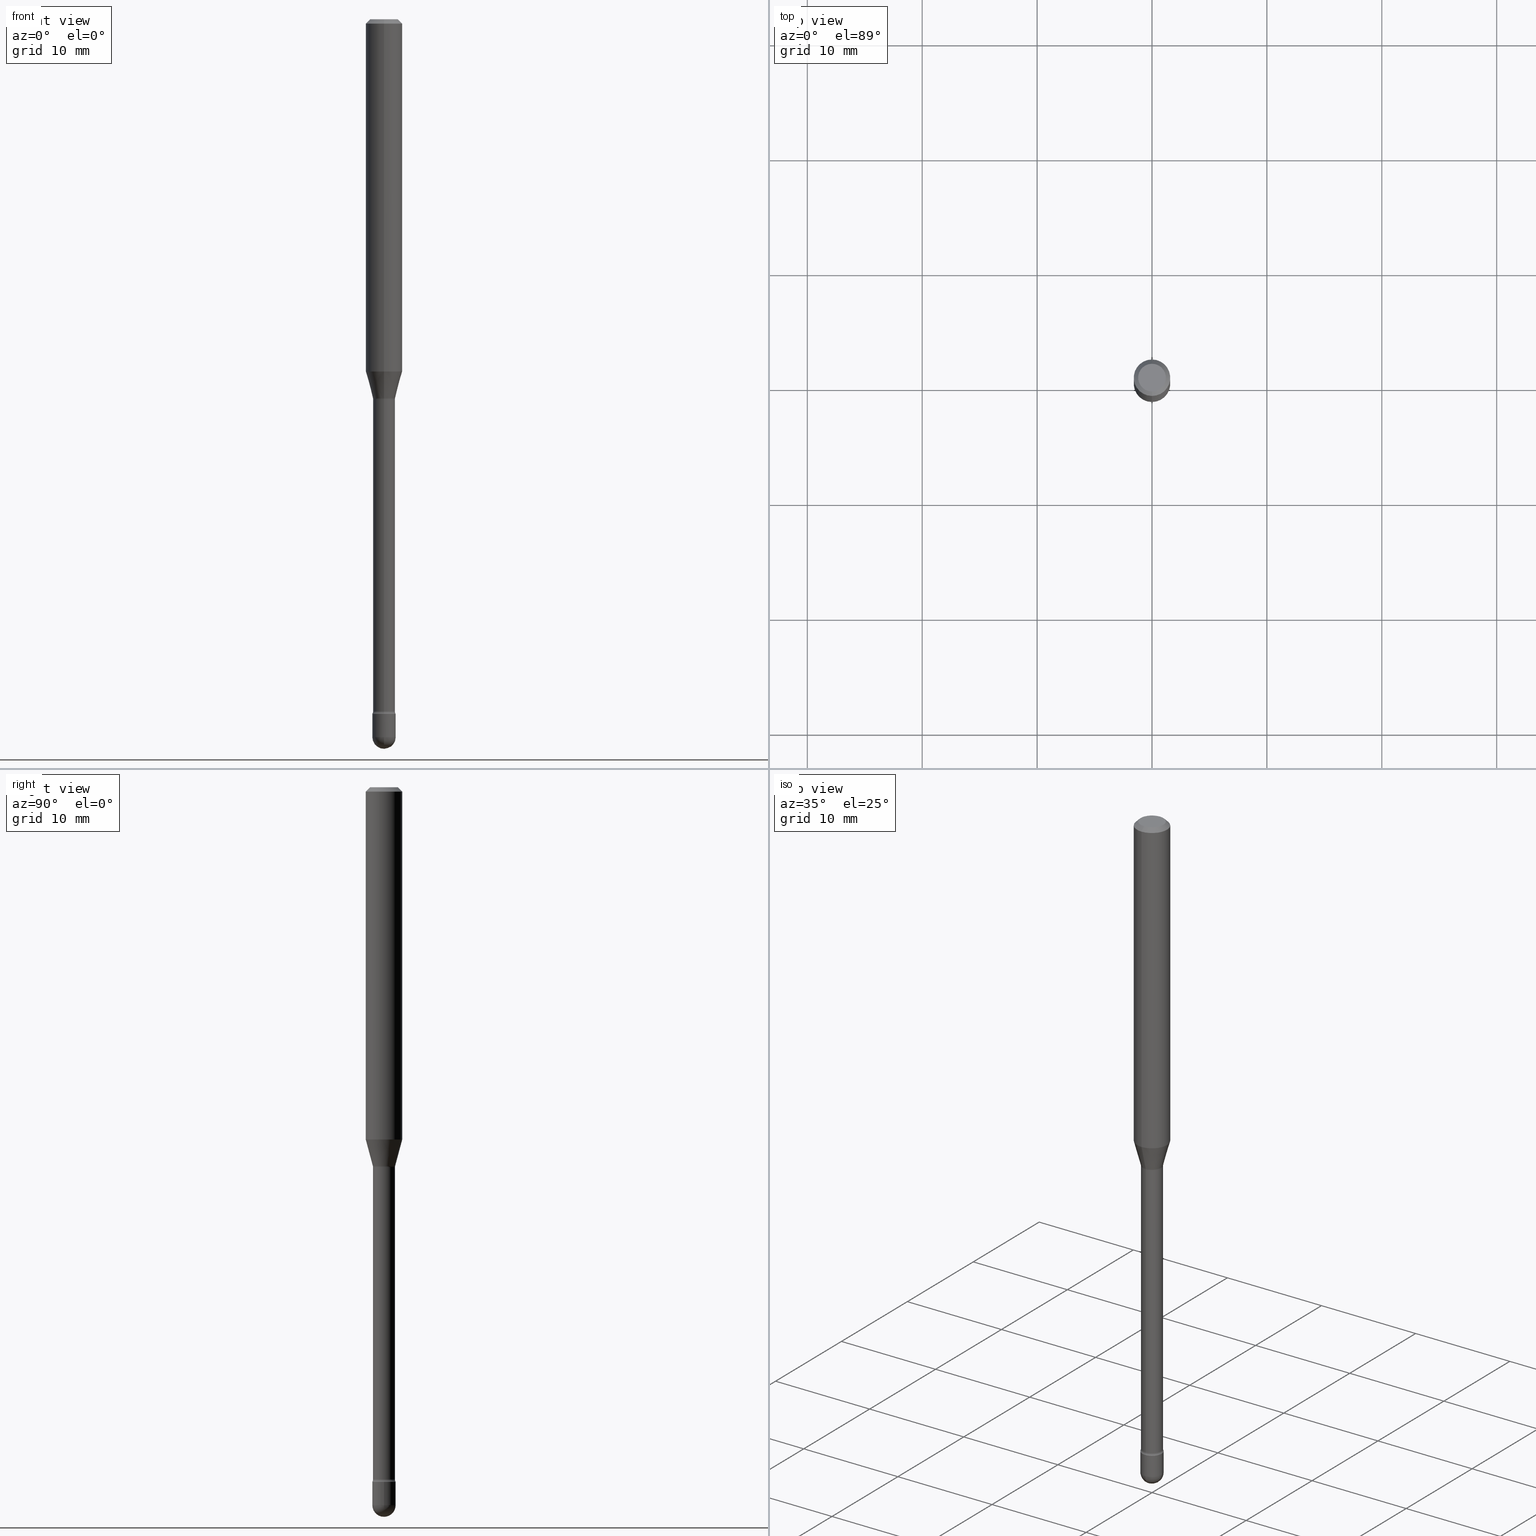
[diagram: canonical four-view strip — front | top / right | iso, engineering-drawing reading convention]
A machine part, canonical four-view strip (front | top / right | iso — engineering-drawing reading convention). The complete STEP part file that produces these views, byte-faithful:
ISO-10303-21;
HEADER;
FILE_DESCRIPTION (( 'STEP AP203' ),
    '1' );
FILE_NAME ('03931.STEP',
    '2024-04-09T21:15:11',
    ( '' ),
    ( '' ),
    'SwSTEP 2.0',
    'SolidWorks 2023',
    '' );
FILE_SCHEMA (( 'CONFIG_CONTROL_DESIGN' ));
ENDSEC;

DATA;
#1 = ORIENTED_EDGE ( 'NONE', *, *, #59, .F. ) ;
#2 = DIRECTION ( 'NONE',  ( -2.445468806185136597E-29, 3.491481338843145583E-15, 1.000000000000000000 ) ) ;
#3 = DIRECTION ( 'NONE',  ( 1.000000000000000000, -6.982962677686265922E-15, 4.883557194083112340E-29 ) ) ;
#4 = AXIS2_PLACEMENT_3D ( 'NONE', #244, #146, #478 ) ;
#5 = LOCAL_TIME ( 17, 15, 11.00000000000000000, #409 ) ;
#6 = ORIENTED_EDGE ( 'NONE', *, *, #462, .F. ) ;
#7 = CALENDAR_DATE ( 2024, 9, 4 ) ;
#8 = DIRECTION ( 'NONE',  ( -2.445468806185136597E-29, 3.491481338843145583E-15, 1.000000000000000000 ) ) ;
#9 = DIRECTION ( 'NONE',  ( -6.982962677686265922E-15, -1.000000000000000000, 3.491492591625370773E-15 ) ) ;
#10 = CARTESIAN_POINT ( 'NONE',  ( 4.364351673553919652E-16, 0.06249999999999995143, -0.01500000000000030129 ) ) ;
#11 = EDGE_CURVE ( 'NONE', #144, #384, #338, .T. ) ;
#12 = CARTESIAN_POINT ( 'NONE',  ( 5.800312587032241644E-29, -8.281309132162736146E-15, -2.371861204020250025 ) ) ;
#13 = DIRECTION ( 'NONE',  ( -2.445460948409306574E-29, 3.491492591625370773E-15, 1.000000000000000000 ) ) ;
#14 = CC_DESIGN_PERSON_AND_ORGANIZATION_ASSIGNMENT ( #521, #324, ( #313 ) ) ;
#15 = CYLINDRICAL_SURFACE ( 'NONE', #116, 0.04000000000000000083 ) ;
#16 = AXIS2_PLACEMENT_3D ( 'NONE', #443, #396, #328 ) ;
#17 = EDGE_LOOP ( 'NONE', ( #458, #225, #73, #520 ) ) ;
#18 = ADVANCED_FACE ( 'NONE', ( #366 ), #46, .F. ) ;
#19 = ORIENTED_EDGE ( 'NONE', *, *, #121, .T. ) ;
#20 = EDGE_CURVE ( 'NONE', #345, #505, #548, .T. ) ;
#21 = DATE_AND_TIME ( #213, #440 ) ;
#22 = DIRECTION ( 'NONE',  ( -6.982962677686265922E-15, -1.000000000000000000, 0.000000000000000000 ) ) ;
#23 = ORIENTED_EDGE ( 'NONE', *, *, #447, .F. ) ;
#24 = CARTESIAN_POINT ( 'NONE',  ( -3.773273898774340269E-16, -0.04749999999999999362, 8.309940053781544412E-17 ) ) ;
#25 = DATE_AND_TIME ( #74, #381 ) ;
#26 = CIRCLE ( 'NONE', #106, 0.04000000000000000083 ) ;
#27 = AXIS2_PLACEMENT_3D ( 'NONE', #257, #166, #342 ) ;
#28 = ADVANCED_FACE ( 'NONE', ( #248 ), #294, .T. ) ;
#29 = EDGE_CURVE ( 'NONE', #503, #227, #438, .T. ) ;
#30 = DIRECTION ( 'NONE',  ( -1.000000000000000000, 6.982962677686265922E-15, -4.883557194083112340E-29 ) ) ;
#31 = CC_DESIGN_DATE_AND_TIME_ASSIGNMENT ( #21, #337, ( #421 ) ) ;
#32 = EDGE_CURVE ( 'NONE', #382, #416, #339, .T. ) ;
#33 = CYLINDRICAL_SURFACE ( 'NONE', #196, 0.03760000000000005699 ) ;
#34 = AXIS2_PLACEMENT_3D ( 'NONE', #75, #427, #415 ) ;
#35 = DIRECTION ( 'NONE',  ( -6.982962677686265922E-15, -1.000000000000000000, 3.491492591625370773E-15 ) ) ;
#36 = ORIENTED_EDGE ( 'NONE', *, *, #447, .T. ) ;
#37 = ADVANCED_FACE ( 'NONE', ( #111 ), #155, .F. ) ;
#38 = EDGE_LOOP ( 'NONE', ( #563, #230, #551, #160 ) ) ;
#39 = DIRECTION ( 'NONE',  ( -2.445468806185136877E-29, 3.491481338843145188E-15, 1.000000000000000000 ) ) ;
#40 = FACE_OUTER_BOUND ( 'NONE', #38, .T. ) ;
#41 = EDGE_CURVE ( 'NONE', #441, #431, #262, .T. ) ;
#42 = DIRECTION ( 'NONE',  ( -2.445460948409306574E-29, 3.491492591625370773E-15, 1.000000000000000000 ) ) ;
#43 = ORIENTED_EDGE ( 'NONE', *, *, #351, .T. ) ;
#44 = VERTEX_POINT ( 'NONE', #180 ) ;
#45 = CARTESIAN_POINT ( 'NONE',  ( -2.625593966809718021E-16, -0.03760000000000455339, -1.301974787463811456 ) ) ;
#46 = TOROIDAL_SURFACE ( 'NONE', #369, 0.05260000000000013276, 0.01500000000000001853 ) ;
#47 = AXIS2_PLACEMENT_3D ( 'NONE', #83, #97, #278 ) ;
#48 = ORIENTED_EDGE ( 'NONE', *, *, #197, .T. ) ;
#49 = PLANE ( 'NONE',  #163 ) ;
#50 = PERSON_AND_ORGANIZATION ( #527, #502 ) ;
#51 = DIRECTION ( 'NONE',  ( -6.982962677686265922E-15, -1.000000000000000000, 3.491492591625370773E-15 ) ) ;
#52 = DIRECTION ( 'NONE',  ( -2.445460948409306574E-29, 3.491492591625370773E-15, 1.000000000000000000 ) ) ;
#53 = ADVANCED_FACE ( 'NONE', ( #285 ), #534, .T. ) ;
#54 = ORIENTED_EDGE ( 'NONE', *, *, #371, .T. ) ;
#55 = CARTESIAN_POINT ( 'NONE',  ( 2.671640686458560068E-16, 0.03759999999999545650, -1.301974787463811456 ) ) ;
#56 = SECURITY_CLASSIFICATION_LEVEL ( 'unclassified' ) ;
#57 = FACE_OUTER_BOUND ( 'NONE', #298, .T. ) ;
#58 = DIRECTION ( 'NONE',  ( -2.445460948409306855E-29, 3.491492591625370773E-15, 1.000000000000000000 ) ) ;
#59 = EDGE_CURVE ( 'NONE', #44, #512, #94, .T. ) ;
#60 = EDGE_LOOP ( 'NONE', ( #129, #385, #36, #471, #6 ) ) ;
#61 = CARTESIAN_POINT ( 'NONE',  ( 5.800312587032241644E-29, -8.281309132162736146E-15, -2.371861204020250025 ) ) ;
#62 = CIRCLE ( 'NONE', #135, 0.03811111260566397985 ) ;
#63 = CIRCLE ( 'NONE', #332, 0.04000000000000000083 ) ;
#64 = DIRECTION ( 'NONE',  ( -6.982962677686267499E-15, -1.000000000000000000, 3.491492591625371956E-15 ) ) ;
#65 = DIRECTION ( 'NONE',  ( -2.445460948409306574E-29, 3.491492591625370773E-15, 1.000000000000000000 ) ) ;
#66 = DIRECTION ( 'NONE',  ( -2.445460948409306574E-29, 3.491492591625370773E-15, 1.000000000000000000 ) ) ;
#67 = ORIENTED_EDGE ( 'NONE', *, *, #32, .T. ) ;
#68 = LINE ( 'NONE', #500, #353 ) ;
#69 = DATE_AND_TIME ( #7, #209 ) ;
#70 = ORIENTED_EDGE ( 'NONE', *, *, #347, .F. ) ;
#71 = AXIS2_PLACEMENT_3D ( 'NONE', #134, #167, #498 ) ;
#72 = APPROVAL_PERSON_ORGANIZATION ( #191, #422, #528 ) ;
#73 = ORIENTED_EDGE ( 'NONE', *, *, #235, .T. ) ;
#74 = CALENDAR_DATE ( 2024, 9, 4 ) ;
#75 = CARTESIAN_POINT ( 'NONE',  ( 6.015853263215436432E-29, -8.589044093554138346E-15, -2.459999999999999964 ) ) ;
#76 = CIRCLE ( 'NONE', #16, 0.01500000000000001853 ) ;
#77 = TOROIDAL_SURFACE ( 'NONE', #355, 0.05260000000000000092, 0.01500000000000002373 ) ;
#78 = DIRECTION ( 'NONE',  ( -1.807323732225325406E-15, -0.2588190451025175198, 0.9659258262890690894 ) ) ;
#79 = EDGE_LOOP ( 'NONE', ( #185, #240, #390, #433 ) ) ;
#80 = EDGE_LOOP ( 'NONE', ( #91, #70, #424, #375 ) ) ;
#81 = MANIFOLD_SOLID_BREP ( 'Body-Move/Copy2[1]', #254 ) ;
#82 = EDGE_CURVE ( 'NONE', #384, #441, #76, .T. ) ;
#83 = CARTESIAN_POINT ( 'NONE',  ( 6.015853263215436432E-29, -8.589044093554138346E-15, -2.459999999999999964 ) ) ;
#84 = VECTOR ( 'NONE', #78, 39.37007874015748854 ) ;
#85 = AXIS2_PLACEMENT_3D ( 'NONE', #432, #395, #513 ) ;
#86 = CARTESIAN_POINT ( 'NONE',  ( -2.661284769304184406E-16, -0.03811111260566851788, -1.298092501787273534 ) ) ;
#87 = EDGE_LOOP ( 'NONE', ( #510, #120, #105, #23 ) ) ;
#88 = VERTEX_POINT ( 'NONE', #325 ) ;
#89 = LINE ( 'NONE', #434, #340 ) ;
#90 = EDGE_CURVE ( 'NONE', #88, #540, #493, .T. ) ;
#91 = ORIENTED_EDGE ( 'NONE', *, *, #495, .F. ) ;
#92 = EDGE_LOOP ( 'NONE', ( #350, #1, #561, #320 ) ) ;
#93 = DIRECTION ( 'NONE',  ( 7.105427357601001859E-15, 1.000000000000000000, 0.000000000000000000 ) ) ;
#94 = CIRCLE ( 'NONE', #145, 0.03760000000000011250 ) ;
#95 = DIRECTION ( 'NONE',  ( -2.445460948409306574E-29, 3.491492591625370773E-15, 1.000000000000000000 ) ) ;
#96 = ORIENTED_EDGE ( 'NONE', *, *, #507, .T. ) ;
#97 = DIRECTION ( 'NONE',  ( -2.445468806185136597E-29, 3.491481338843145583E-15, 1.000000000000000000 ) ) ;
#98 = CARTESIAN_POINT ( 'NONE',  ( 0.000000000000000000, 0.000000000000000000, 0.000000000000000000 ) ) ;
#99 = LINE ( 'NONE', #288, #280 ) ;
#100 = VERTEX_POINT ( 'NONE', #566 ) ;
#101 = ADVANCED_FACE ( 'NONE', ( #522 ), #559, .T. ) ;
#102 = PERSON_AND_ORGANIZATION_ROLE ( 'creator' ) ;
#103 = PLANE ( 'NONE',  #331 ) ;
#104 = DIRECTION ( 'NONE',  ( -6.982962677686266711E-15, -1.000000000000000000, 0.000000000000000000 ) ) ;
#105 = ORIENTED_EDGE ( 'NONE', *, *, #121, .F. ) ;
#106 = AXIS2_PLACEMENT_3D ( 'NONE', #508, #546, #469 ) ;
#107 = EDGE_CURVE ( 'NONE', #44, #441, #99, .T. ) ;
#108 = CC_DESIGN_APPROVAL ( #422, ( #313 ) ) ;
#109 = DIRECTION ( 'NONE',  ( -2.445460948409306574E-29, 3.491492591625370773E-15, 1.000000000000000000 ) ) ;
#110 = CARTESIAN_POINT ( 'NONE',  ( 0.03999999999999999389, -8.728703347107863365E-15, -2.459999999999999964 ) ) ;
#111 = FACE_OUTER_BOUND ( 'NONE', #308, .T. ) ;
#112 = FACE_OUTER_BOUND ( 'NONE', #473, .T. ) ;
#113 = ORIENTED_EDGE ( 'NONE', *, *, #299, .T. ) ;
#114 = DIRECTION ( 'NONE',  ( -7.105427357601000281E-15, -1.000000000000000000, 0.000000000000000000 ) ) ;
#115 = CARTESIAN_POINT ( 'NONE',  ( -4.364351673553916201E-16, -0.06250000000000000000, 6.962916858678317119E-16 ) ) ;
#116 = AXIS2_PLACEMENT_3D ( 'NONE', #413, #252, #199 ) ;
#117 = APPROVAL_DATE_TIME ( #25, #374 ) ;
#118 = DIRECTION ( 'NONE',  ( 6.982962677686265922E-15, 1.000000000000000000, -6.829619984160649566E-15 ) ) ;
#119 = FACE_OUTER_BOUND ( 'NONE', #270, .T. ) ;
#120 = ORIENTED_EDGE ( 'NONE', *, *, #90, .T. ) ;
#121 = EDGE_CURVE ( 'NONE', #173, #540, #264, .T. ) ;
#122 = CARTESIAN_POINT ( 'NONE',  ( 6.015853263215436432E-29, -8.589044093554138346E-15, -2.459999999999999964 ) ) ;
#123 = CC_DESIGN_PERSON_AND_ORGANIZATION_ASSIGNMENT ( #532, #102, ( #313 ) ) ;
#124 = AXIS2_PLACEMENT_3D ( 'NONE', #192, #529, #292 ) ;
#125 = VECTOR ( 'NONE', #367, 39.37007874015748854 ) ;
#126 = APPROVAL_PERSON_ORGANIZATION ( #50, #261, #391 ) ;
#127 = ADVANCED_FACE ( 'NONE', ( #479 ), #509, .F. ) ;
#128 = DIRECTION ( 'NONE',  ( -2.445468806185136877E-29, 3.491481338843145188E-15, 1.000000000000000000 ) ) ;
#129 = ORIENTED_EDGE ( 'NONE', *, *, #539, .F. ) ;
#130 = CARTESIAN_POINT ( 'NONE',  ( 0.000000000000000000, 0.000000000000000000, 0.000000000000000000 ) ) ;
#131 = VERTEX_POINT ( 'NONE', #448 ) ;
#132 = ORIENTED_EDGE ( 'NONE', *, *, #215, .F. ) ;
#133 = CARTESIAN_POINT ( 'NONE',  ( 0.04000000000000000083, -8.589044093554136769E-15, -2.379999999999999893 ) ) ;
#134 = CARTESIAN_POINT ( 'NONE',  ( 3.174434520543714975E-29, -4.532280353234707866E-15, -1.298092501787273534 ) ) ;
#135 = AXIS2_PLACEMENT_3D ( 'NONE', #555, #464, #175 ) ;
#136 = CIRCLE ( 'NONE', #560, 0.06250000000000000000 ) ;
#137 = DIRECTION ( 'NONE',  ( 1.000000000000000000, -7.105427357601001070E-15, 4.926315646348919506E-29 ) ) ;
#138 = ADVANCED_BREP_SHAPE_REPRESENTATION ( '03931', ( #81, #301, #243 ), #271 ) ;
#139 = EDGE_CURVE ( 'NONE', #88, #100, #242, .T. ) ;
#140 = LENGTH_MEASURE_WITH_UNIT ( LENGTH_MEASURE( 0.02539999999999999897 ), #348 );
#141 = DIRECTION ( 'NONE',  ( -2.445460948409306574E-29, 3.491492591625370773E-15, 1.000000000000000000 ) ) ;
#142 = DIRECTION ( 'NONE',  ( -2.445460948409306574E-29, 3.491492591625370773E-15, 1.000000000000000000 ) ) ;
#143 = CARTESIAN_POINT ( 'NONE',  ( 2.951847278698110549E-29, -4.214482718232697663E-15, -1.207071934891535303 ) ) ;
#144 = VERTEX_POINT ( 'NONE', #499 ) ;
#145 = AXIS2_PLACEMENT_3D ( 'NONE', #153, #95, #358 ) ;
#146 = DIRECTION ( 'NONE',  ( 2.445460948409306574E-29, -3.491492591625370773E-15, -1.000000000000000000 ) ) ;
#147 = DIRECTION ( 'NONE',  ( -6.982962677686266711E-15, -1.000000000000000000, 3.491492591625370773E-15 ) ) ;
#148 = ADVANCED_FACE ( 'NONE', ( #256 ), #15, .T. ) ;
#149 = DIRECTION ( 'NONE',  ( -2.445460948409306574E-29, 3.491492591625370773E-15, 1.000000000000000000 ) ) ;
#150 = FACE_OUTER_BOUND ( 'NONE', #279, .T. ) ;
#151 = DATE_TIME_ROLE ( 'creation_date' ) ;
#152 = CARTESIAN_POINT ( 'NONE',  ( 4.440892098500918040E-16, 0.06249999999999574646, -1.207071934891535525 ) ) ;
#153 = CARTESIAN_POINT ( 'NONE',  ( 5.800293949478600504E-29, -8.281335822200333185E-15, -2.371861204020250025 ) ) ;
#154 = CARTESIAN_POINT ( 'NONE',  ( 5.820215758720625190E-29, -8.309725586446686731E-15, -2.379999999999999893 ) ) ;
#155 = TOROIDAL_SURFACE ( 'NONE', #208, 0.05260000000000000092, 0.01500000000000002373 ) ;
#156 = CIRCLE ( 'NONE', #461, 0.04749999999999999362 ) ;
#157 = DIRECTION ( 'NONE',  ( 4.937700262164548042E-15, 0.7071067811865451302, -0.7071067811865499042 ) ) ;
#158 = CARTESIAN_POINT ( 'NONE',  ( 2.671640686457980748E-16, 0.03760000000000005699, 3.467932774461318563E-16 ) ) ;
#159 = FACE_OUTER_BOUND ( 'NONE', #79, .T. ) ;
#160 = ORIENTED_EDGE ( 'NONE', *, *, #32, .F. ) ;
#161 = PLANE ( 'NONE',  #542 ) ;
#162 = CIRCLE ( 'NONE', #216, 0.04000000000000000083 ) ;
#163 = AXIS2_PLACEMENT_3D ( 'NONE', #354, #445, #231 ) ;
#164 = COORDINATED_UNIVERSAL_TIME_OFFSET ( 5, 0, .BEHIND. ) ;
#165 = ADVANCED_FACE ( 'NONE', ( #159 ), #454, .T. ) ;
#166 = DIRECTION ( 'NONE',  ( -2.445460948409306574E-29, 3.491492591625370773E-15, 1.000000000000000000 ) ) ;
#167 = DIRECTION ( 'NONE',  ( -2.445460948409306574E-29, 3.491492591625370773E-15, 1.000000000000000000 ) ) ;
#168 = PRODUCT ( '03931', '03931', '', ( #223 ) ) ;
#169 = ORIENTED_EDGE ( 'NONE', *, *, #107, .F. ) ;
#170 = EDGE_CURVE ( 'NONE', #416, #206, #246, .T. ) ;
#171 = EDGE_LOOP ( 'NONE', ( #550, #67, #224, #309 ) ) ;
#172 = ORIENTED_EDGE ( 'NONE', *, *, #491, .T. ) ;
#173 = VERTEX_POINT ( 'NONE', #110 ) ;
#174 = CARTESIAN_POINT ( 'NONE',  ( 3.737454790098715731E-16, 0.05259999999999185466, -2.371861204020250025 ) ) ;
#175 = DIRECTION ( 'NONE',  ( -6.982962677686266711E-15, -1.000000000000000000, 0.000000000000000000 ) ) ;
#176 = ORIENTED_EDGE ( 'NONE', *, *, #329, .F. ) ;
#177 = CARTESIAN_POINT ( 'NONE',  ( 0.04000000000000000083, -2.793185071074506290E-16, 1.950470710318374387E-30 ) ) ;
#178 = CIRCLE ( 'NONE', #27, 0.03760000000000011250 ) ;
#179 = EDGE_CURVE ( 'NONE', #516, #401, #162, .T. ) ;
#180 = CARTESIAN_POINT ( 'NONE',  ( -2.625593966809464107E-16, -0.03760000000000839754, -2.371861204020250025 ) ) ;
#181 = EDGE_LOOP ( 'NONE', ( #545, #307, #359, #277, #19 ) ) ;
#182 = CARTESIAN_POINT ( 'NONE',  ( 5.820215758720625190E-29, -8.309725586446686731E-15, -2.379999999999999893 ) ) ;
#183 = CALENDAR_DATE ( 2024, 9, 4 ) ;
#184 = DIRECTION ( 'NONE',  ( -6.982962677686265922E-15, -1.000000000000000000, 3.491492591625369984E-15 ) ) ;
#185 = ORIENTED_EDGE ( 'NONE', *, *, #90, .F. ) ;
#186 = CARTESIAN_POINT ( 'NONE',  ( 3.840629472727447874E-16, 0.04749999999999999362, -2.485923956665947374E-16 ) ) ;
#187 = AXIS2_PLACEMENT_3D ( 'NONE', #143, #488, #363 ) ;
#188 = APPROVAL_PERSON_ORGANIZATION ( #497, #374, #203 ) ;
#189 = DIRECTION ( 'NONE',  ( -2.445468806185136597E-29, 3.491481338843145583E-15, 1.000000000000000000 ) ) ;
#190 = CC_DESIGN_PERSON_AND_ORGANIZATION_ASSIGNMENT ( #226, #558, ( #168 ) ) ;
#191 = PERSON_AND_ORGANIZATION ( #527, #502 ) ;
#192 = CARTESIAN_POINT ( 'NONE',  ( 2.023495718177619601E-45, -2.889141628848587793E-31, -8.274649756438965280E-17 ) ) ;
#193 = CYLINDRICAL_SURFACE ( 'NONE', #486, 0.03760000000000005699 ) ;
#194 = CARTESIAN_POINT ( 'NONE',  ( 5.820197057214149188E-29, -8.309752368068382716E-15, -2.379999999999999893 ) ) ;
#195 = AXIS2_PLACEMENT_3D ( 'NONE', #380, #453, #407 ) ;
#196 = AXIS2_PLACEMENT_3D ( 'NONE', #357, #142, #219 ) ;
#197 = EDGE_CURVE ( 'NONE', #431, #441, #228, .T. ) ;
#198 = DIRECTION ( 'NONE',  ( -2.445460948409306855E-29, 3.491492591625370773E-15, 1.000000000000000000 ) ) ;
#199 = DIRECTION ( 'NONE',  ( 1.000000000000000000, -6.982962677686265922E-15, 4.876176775795935793E-29 ) ) ;
#200 = ORIENTED_EDGE ( 'NONE', *, *, #179, .F. ) ;
#201 = DIRECTION ( 'NONE',  ( -6.982962677686267499E-15, -1.000000000000000000, 0.000000000000000000 ) ) ;
#202 = PRODUCT_RELATED_PRODUCT_CATEGORY ( 'detail', '', ( #168 ) ) ;
#203 = APPROVAL_ROLE ( '' ) ;
#204 = LINE ( 'NONE', #158, #465 ) ;
#205 = EDGE_CURVE ( 'NONE', #512, #431, #204, .T. ) ;
#206 = VERTEX_POINT ( 'NONE', #341 ) ;
#207 = CARTESIAN_POINT ( 'NONE',  ( -0.03999999999999999389, -8.165167745696373001E-15, -2.459999999999999964 ) ) ;
#208 = AXIS2_PLACEMENT_3D ( 'NONE', #319, #250, #403 ) ;
#209 = LOCAL_TIME ( 17, 15, 11.00000000000000000, #451 ) ;
#210 = SHAPE_DEFINITION_REPRESENTATION ( #211, #138 ) ;
#211 = PRODUCT_DEFINITION_SHAPE ( 'NONE', 'NONE',  #543 ) ;
#212 = FACE_OUTER_BOUND ( 'NONE', #87, .T. ) ;
#213 = CALENDAR_DATE ( 2024, 9, 4 ) ;
#214 = CARTESIAN_POINT ( 'NONE',  ( 2.707957421369289967E-16, 0.03811111260565944875, -1.298092501787273534 ) ) ;
#215 = EDGE_CURVE ( 'NONE', #384, #416, #295, .T. ) ;
#216 = AXIS2_PLACEMENT_3D ( 'NONE', #194, #297, #260 ) ;
#217 = ORIENTED_EDGE ( 'NONE', *, *, #205, .F. ) ;
#218 = DIRECTION ( 'NONE',  ( 6.982962677686265922E-15, 1.000000000000000000, -3.483106191921935554E-15 ) ) ;
#219 = DIRECTION ( 'NONE',  ( -6.982962677686267499E-15, -1.000000000000000000, 3.491492591625371956E-15 ) ) ;
#220 = EDGE_LOOP ( 'NONE', ( #200, #477 ) ) ;
#221 = CARTESIAN_POINT ( 'NONE',  ( -2.793185071073924505E-16, -0.04000000000000831363, -2.379999999999999893 ) ) ;
#222 = ADVANCED_FACE ( 'NONE', ( #40 ), #549, .T. ) ;
#223 = MECHANICAL_CONTEXT ( 'NONE', #397, 'mechanical' ) ;
#224 = ORIENTED_EDGE ( 'NONE', *, *, #170, .T. ) ;
#225 = ORIENTED_EDGE ( 'NONE', *, *, #247, .T. ) ;
#226 = PERSON_AND_ORGANIZATION ( #527, #502 ) ;
#227 = VERTEX_POINT ( 'NONE', #490 ) ;
#228 = CIRCLE ( 'NONE', #344, 0.03760000000000000842 ) ;
#229 = VECTOR ( 'NONE', #39, 39.37007874015748143 ) ;
#230 = ORIENTED_EDGE ( 'NONE', *, *, #11, .T. ) ;
#231 = DIRECTION ( 'NONE',  ( 1.000000000000000000, -6.982962677686265922E-15, 4.876176775795935793E-29 ) ) ;
#232 = APPROVAL_STATUS ( 'not_yet_approved' ) ;
#233 = DIRECTION ( 'NONE',  ( -2.445460948409306574E-29, 3.491492591625370773E-15, 1.000000000000000000 ) ) ;
#234 = CARTESIAN_POINT ( 'NONE',  ( 6.015853263215436432E-29, -8.589044093554138346E-15, -2.459999999999999964 ) ) ;
#235 = EDGE_CURVE ( 'NONE', #206, #131, #370, .T. ) ;
#236 = ORIENTED_EDGE ( 'NONE', *, *, #462, .T. ) ;
#237 = DIRECTION ( 'NONE',  ( -2.445460948409306855E-29, 3.491492591625370773E-15, 1.000000000000000000 ) ) ;
#238 = CARTESIAN_POINT ( 'NONE',  ( 6.015853263215436432E-29, -8.589044093554138346E-15, -2.459999999999999964 ) ) ;
#239 = DESIGN_CONTEXT ( 'detailed design', #314, 'design' ) ;
#240 = ORIENTED_EDGE ( 'NONE', *, *, #139, .T. ) ;
#241 = CYLINDRICAL_SURFACE ( 'NONE', #494, 0.04000000000000000083 ) ;
#242 = CIRCLE ( 'NONE', #388, 0.04000000000000004940 ) ;
#243 = AXIS2_PLACEMENT_3D ( 'NONE', #130, #514, #272 ) ;
#244 = CARTESIAN_POINT ( 'NONE',  ( 3.668191422613980058E-31, -5.237238887438085372E-17, -0.01500000000000008271 ) ) ;
#245 = LINE ( 'NONE', #10, #439 ) ;
#246 = LINE ( 'NONE', #115, #420 ) ;
#247 = EDGE_CURVE ( 'NONE', #345, #206, #68, .T. ) ;
#248 = FACE_OUTER_BOUND ( 'NONE', #171, .T. ) ;
#249 = APPROVAL_DATE_TIME ( #504, #261 ) ;
#250 = DIRECTION ( 'NONE',  ( -2.445460948409306574E-29, 3.491492591625370773E-15, 1.000000000000000000 ) ) ;
#251 = DIRECTION ( 'NONE',  ( -6.982962677686265922E-15, -1.000000000000000000, 4.370956789862821150E-15 ) ) ;
#252 = DIRECTION ( 'NONE',  ( -2.445468806185136597E-29, 3.491481338843145583E-15, 1.000000000000000000 ) ) ;
#253 = CC_DESIGN_DATE_AND_TIME_ASSIGNMENT ( #69, #151, ( #543 ) ) ;
#254 = CLOSED_SHELL ( 'NONE', ( #372, #165, #425, #259, #148 ) ) ;
#255 = ORIENTED_EDGE ( 'NONE', *, *, #82, .F. ) ;
#256 = FACE_OUTER_BOUND ( 'NONE', #60, .T. ) ;
#257 = CARTESIAN_POINT ( 'NONE',  ( 5.800293949478600504E-29, -8.281335822200333185E-15, -2.371861204020250025 ) ) ;
#258 = DIRECTION ( 'NONE',  ( -6.982962677686265922E-15, -1.000000000000000000, 3.491492591625370773E-15 ) ) ;
#259 = ADVANCED_FACE ( 'NONE', ( #212 ), #423, .T. ) ;
#260 = DIRECTION ( 'NONE',  ( -6.982962677686265922E-15, -1.000000000000000000, 6.829619984160658243E-15 ) ) ;
#261 = APPROVAL ( #232, 'UNSPECIFIED' ) ;
#262 = CIRCLE ( 'NONE', #364, 0.03760000000000000842 ) ;
#263 = DIRECTION ( 'NONE',  ( -6.982962677686265922E-15, -1.000000000000000000, 3.483106191921935554E-15 ) ) ;
#264 = CIRCLE ( 'NONE', #305, 0.03999999999999999389 ) ;
#265 = COORDINATED_UNIVERSAL_TIME_OFFSET ( 5, 0, .BEHIND. ) ;
#266 = DIRECTION ( 'NONE',  ( -4.851104656540964275E-15, -0.7071067811865500152, -0.7071067811865450192 ) ) ;
#267 = ORIENTED_EDGE ( 'NONE', *, *, #170, .F. ) ;
#268 = DIRECTION ( 'NONE',  ( -1.000000000000000000, 6.982962677686265922E-15, -4.883557194083112340E-29 ) ) ;
#269 = CARTESIAN_POINT ( 'NONE',  ( 2.793185071075109275E-16, 0.03999999999999143130, -2.460000000000000409 ) ) ;
#270 = EDGE_LOOP ( 'NONE', ( #489, #459, #316, #317 ) ) ;
#271 =( GEOMETRIC_REPRESENTATION_CONTEXT ( 3 ) GLOBAL_UNCERTAINTY_ASSIGNED_CONTEXT ( ( #531 ) ) GLOBAL_UNIT_ASSIGNED_CONTEXT ( ( #435, #463, #426 ) ) REPRESENTATION_CONTEXT ( 'NONE', 'WORKASPACE' ) );
#272 = DIRECTION ( 'NONE',  ( 1.000000000000000000, 0.000000000000000000, 0.000000000000000000 ) ) ;
#273 = EDGE_CURVE ( 'NONE', #144, #382, #480, .T. ) ;
#274 = ORIENTED_EDGE ( 'NONE', *, *, #205, .T. ) ;
#275 = DIRECTION ( 'NONE',  ( -6.982962677686265922E-15, -1.000000000000000000, 3.483106191921935554E-15 ) ) ;
#276 = FACE_OUTER_BOUND ( 'NONE', #80, .T. ) ;
#277 = ORIENTED_EDGE ( 'NONE', *, *, #511, .F. ) ;
#278 = DIRECTION ( 'NONE',  ( 1.000000000000000000, -6.982962677686260400E-15, 0.000000000000000000 ) ) ;
#279 = EDGE_LOOP ( 'NONE', ( #217, #54, #398, #444 ) ) ;
#280 = VECTOR ( 'NONE', #58, 39.37007874015748143 ) ;
#281 = LOCAL_TIME ( 17, 15, 11.00000000000000000, #564 ) ;
#282 = APPLICATION_PROTOCOL_DEFINITION ( 'international standard', 'config_control_design', 1994, #314 ) ;
#283 = CARTESIAN_POINT ( 'NONE',  ( -1.169113584055446105E-44, 1.669184350826100908E-30, 4.780733988912460139E-16 ) ) ;
#284 = ADVANCED_FACE ( 'NONE', ( #112 ), #193, .T. ) ;
#285 = FACE_OUTER_BOUND ( 'NONE', #373, .T. ) ;
#286 = ORIENTED_EDGE ( 'NONE', *, *, #299, .F. ) ;
#287 = CARTESIAN_POINT ( 'NONE',  ( 3.183938729182273846E-29, -4.545820674074168441E-15, -1.301974787463811456 ) ) ;
#288 = CARTESIAN_POINT ( 'NONE',  ( -2.625593966810040468E-16, -0.03760000000000005699, 6.093535203363602208E-16 ) ) ;
#289 = DIRECTION ( 'NONE',  ( -6.982962677686265922E-15, -1.000000000000000000, 0.000000000000000000 ) ) ;
#290 = FACE_OUTER_BOUND ( 'NONE', #312, .T. ) ;
#291 = CIRCLE ( 'NONE', #450, 0.06250000000000000000 ) ;
#292 = DIRECTION ( 'NONE',  ( -6.982962677686266711E-15, -1.000000000000000000, 3.491492591625370773E-15 ) ) ;
#293 = EDGE_CURVE ( 'NONE', #505, #131, #245, .T. ) ;
#294 = CYLINDRICAL_SURFACE ( 'NONE', #408, 0.06250000000000000000 ) ;
#295 = LINE ( 'NONE', #430, #84 ) ;
#296 = CIRCLE ( 'NONE', #34, 0.03999999999999999389 ) ;
#297 = DIRECTION ( 'NONE',  ( -2.445460948409306574E-29, 3.491492591625370773E-15, 1.000000000000000000 ) ) ;
#298 = EDGE_LOOP ( 'NONE', ( #113, #172, #352, #267 ) ) ;
#299 = EDGE_CURVE ( 'NONE', #416, #382, #291, .T. ) ;
#300 = DIRECTION ( 'NONE',  ( -2.445460948409306294E-29, 3.491492591625370773E-15, 1.000000000000000000 ) ) ;
#301 = MANIFOLD_SOLID_BREP ( 'Body-Move/Copy2[2]', #533 ) ;
#302 = CARTESIAN_POINT ( 'NONE',  ( 6.015853263215436432E-29, -8.589044093554138346E-15, -2.459999999999999964 ) ) ;
#303 = DIRECTION ( 'NONE',  ( -2.445460948409306574E-29, 3.491492591625370773E-15, 1.000000000000000000 ) ) ;
#304 = AXIS2_PLACEMENT_3D ( 'NONE', #483, #475, #104 ) ;
#305 = AXIS2_PLACEMENT_3D ( 'NONE', #238, #189, #365 ) ;
#306 = CC_DESIGN_SECURITY_CLASSIFICATION ( #421, ( #313 ) ) ;
#307 = ORIENTED_EDGE ( 'NONE', *, *, #539, .T. ) ;
#308 = EDGE_LOOP ( 'NONE', ( #346, #356, #48, #255 ) ) ;
#309 = ORIENTED_EDGE ( 'NONE', *, *, #470, .F. ) ;
#310 = EDGE_CURVE ( 'NONE', #540, #349, #476, .T. ) ;
#311 = AXIS2_PLACEMENT_3D ( 'NONE', #315, #378, #218 ) ;
#312 = EDGE_LOOP ( 'NONE', ( #96, #467 ) ) ;
#313 = PRODUCT_DEFINITION_FORMATION_WITH_SPECIFIED_SOURCE ( 'ANY', '', #168, .NOT_KNOWN. ) ;
#314 = APPLICATION_CONTEXT ( 'configuration controlled 3d designs of mechanical parts and assemblies' ) ;
#315 = CARTESIAN_POINT ( 'NONE',  ( 3.668191422613980058E-31, -5.237238887438085372E-17, -0.01500000000000008271 ) ) ;
#316 = ORIENTED_EDGE ( 'NONE', *, *, #293, .T. ) ;
#317 = ORIENTED_EDGE ( 'NONE', *, *, #470, .T. ) ;
#318 = EDGE_CURVE ( 'NONE', #349, #100, #296, .T. ) ;
#319 = CARTESIAN_POINT ( 'NONE',  ( 3.183938729182273846E-29, -4.545820674074168441E-15, -1.301974787463811456 ) ) ;
#320 = ORIENTED_EDGE ( 'NONE', *, *, #179, .T. ) ;
#321 = DIRECTION ( 'NONE',  ( -2.445460948409306574E-29, 3.491492591625370773E-15, 1.000000000000000000 ) ) ;
#322 = CONICAL_SURFACE ( 'NONE', #311, 0.06250000000000000000, 0.7853981633974483900 ) ;
#323 = AXIS2_PLACEMENT_3D ( 'NONE', #283, #233, #392 ) ;
#324 = PERSON_AND_ORGANIZATION_ROLE ( 'design_supplier' ) ;
#325 = CARTESIAN_POINT ( 'NONE',  ( 6.115382348041200269E-29, -8.726254053509568220E-15, -2.500000000000000000 ) ) ;
#326 = ORIENTED_EDGE ( 'NONE', *, *, #371, .F. ) ;
#327 = CARTESIAN_POINT ( 'NONE',  ( 3.174434520543714975E-29, -4.532280353234707866E-15, -1.298092501787273534 ) ) ;
#328 = DIRECTION ( 'NONE',  ( -6.982962677686267499E-15, -1.000000000000000000, 0.000000000000000000 ) ) ;
#329 = EDGE_CURVE ( 'NONE', #44, #516, #501, .T. ) ;
#330 = AXIS2_PLACEMENT_3D ( 'NONE', #61, #303, #258 ) ;
#331 = AXIS2_PLACEMENT_3D ( 'NONE', #482, #452, #474 ) ;
#332 = AXIS2_PLACEMENT_3D ( 'NONE', #182, #2, #517 ) ;
#333 = DIRECTION ( 'NONE',  ( -2.445468806185136597E-29, 3.491481338843145583E-15, 1.000000000000000000 ) ) ;
#334 = APPROVAL_DATE_TIME ( #405, #422 ) ;
#335 = DIRECTION ( 'NONE',  ( -2.445460948409306855E-29, 3.491492591625370773E-15, 1.000000000000000000 ) ) ;
#336 = ADVANCED_FACE ( 'NONE', ( #541 ), #161, .F. ) ;
#337 = DATE_TIME_ROLE ( 'classification_date' ) ;
#338 = CIRCLE ( 'NONE', #304, 0.03811111260566397985 ) ;
#339 = CIRCLE ( 'NONE', #187, 0.06250000000000000000 ) ;
#340 = VECTOR ( 'NONE', #128, 39.37007874015748143 ) ;
#341 = CARTESIAN_POINT ( 'NONE',  ( -4.364351673553912750E-16, -0.06250000000000005551, -0.01499999999999986587 ) ) ;
#342 = DIRECTION ( 'NONE',  ( -6.982962677686265922E-15, -1.000000000000000000, 0.000000000000000000 ) ) ;
#343 = ADVANCED_FACE ( 'NONE', ( #119 ), #322, .T. ) ;
#344 = AXIS2_PLACEMENT_3D ( 'NONE', #537, #538, #22 ) ;
#345 = VERTEX_POINT ( 'NONE', #24 ) ;
#346 = ORIENTED_EDGE ( 'NONE', *, *, #11, .F. ) ;
#347 = EDGE_CURVE ( 'NONE', #384, #144, #62, .T. ) ;
#348 =( LENGTH_UNIT ( ) NAMED_UNIT ( * ) SI_UNIT ( $, .METRE. ) );
#349 = VERTEX_POINT ( 'NONE', #207 ) ;
#350 = ORIENTED_EDGE ( 'NONE', *, *, #530, .F. ) ;
#351 = EDGE_CURVE ( 'NONE', #401, #516, #26, .T. ) ;
#352 = ORIENTED_EDGE ( 'NONE', *, *, #235, .F. ) ;
#353 = VECTOR ( 'NONE', #266, 39.37007874015748143 ) ;
#354 = CARTESIAN_POINT ( 'NONE',  ( 5.820215758720625190E-29, -8.309725586446686731E-15, -2.379999999999999893 ) ) ;
#355 = AXIS2_PLACEMENT_3D ( 'NONE', #287, #141, #51 ) ;
#356 = ORIENTED_EDGE ( 'NONE', *, *, #495, .T. ) ;
#357 = CARTESIAN_POINT ( 'NONE',  ( -1.169113584055446105E-44, 1.669184350826100908E-30, 4.780733988912460139E-16 ) ) ;
#358 = DIRECTION ( 'NONE',  ( -6.982962677686265922E-15, -1.000000000000000000, 0.000000000000000000 ) ) ;
#359 = ORIENTED_EDGE ( 'NONE', *, *, #29, .F. ) ;
#360 = LINE ( 'NONE', #442, #524 ) ;
#361 = PERSON_AND_ORGANIZATION_ROLE ( 'creator' ) ;
#362 = CARTESIAN_POINT ( 'NONE',  ( -4.364351673553623829E-16, -0.06250000000000424660, -1.207071934891535081 ) ) ;
#363 = DIRECTION ( 'NONE',  ( -6.982962677686265922E-15, -1.000000000000000000, 4.370956789862821150E-15 ) ) ;
#364 = AXIS2_PLACEMENT_3D ( 'NONE', #446, #66, #289 ) ;
#365 = DIRECTION ( 'NONE',  ( 1.000000000000000000, -6.982962677686260400E-15, 0.000000000000000000 ) ) ;
#366 = FACE_OUTER_BOUND ( 'NONE', #429, .T. ) ;
#367 = DIRECTION ( 'NONE',  ( 1.839019923739595582E-15, 0.2588190451025242922, 0.9659258262890673130 ) ) ;
#368 = CARTESIAN_POINT ( 'NONE',  ( 3.668191422613980058E-31, -5.237238887438085372E-17, -0.01500000000000008271 ) ) ;
#369 = AXIS2_PLACEMENT_3D ( 'NONE', #12, #149, #9 ) ;
#370 = CIRCLE ( 'NONE', #523, 0.06250000000000000000 ) ;
#371 = EDGE_CURVE ( 'NONE', #512, #44, #178, .T. ) ;
#372 = ADVANCED_FACE ( 'NONE', ( #496 ), #241, .T. ) ;
#373 = EDGE_LOOP ( 'NONE', ( #456, #394, #286, #132 ) ) ;
#374 = APPROVAL ( #492, 'UNSPECIFIED' ) ;
#375 = ORIENTED_EDGE ( 'NONE', *, *, #41, .T. ) ;
#376 = CARTESIAN_POINT ( 'NONE',  ( 6.015853263215436432E-29, -8.589044093554138346E-15, -2.459999999999999964 ) ) ;
#377 = AXIS2_PLACEMENT_3D ( 'NONE', #174, #137, #93 ) ;
#378 = DIRECTION ( 'NONE',  ( 2.445460948409306574E-29, -3.491492591625370773E-15, -1.000000000000000000 ) ) ;
#379 = DIRECTION ( 'NONE',  ( -1.000000000000000000, 7.105427357601001070E-15, -4.926315508542082329E-29 ) ) ;
#380 = CARTESIAN_POINT ( 'NONE',  ( 6.015853263215436432E-29, -8.589044093554138346E-15, -2.459999999999999964 ) ) ;
#381 = LOCAL_TIME ( 17, 15, 11.00000000000000000, #164 ) ;
#382 = VERTEX_POINT ( 'NONE', #152 ) ;
#383 = LINE ( 'NONE', #177, #229 ) ;
#384 = VERTEX_POINT ( 'NONE', #86 ) ;
#385 = ORIENTED_EDGE ( 'NONE', *, *, #318, .T. ) ;
#386 = FACE_OUTER_BOUND ( 'NONE', #437, .T. ) ;
#387 = ADVANCED_FACE ( 'NONE', ( #276 ), #77, .F. ) ;
#388 = AXIS2_PLACEMENT_3D ( 'NONE', #376, #379, #114 ) ;
#389 = CIRCLE ( 'NONE', #47, 0.03999999999999999389 ) ;
#390 = ORIENTED_EDGE ( 'NONE', *, *, #318, .F. ) ;
#391 = APPROVAL_ROLE ( '' ) ;
#392 = DIRECTION ( 'NONE',  ( -6.982962677686265922E-15, -1.000000000000000000, 3.491492591625369984E-15 ) ) ;
#393 = DIRECTION ( 'NONE',  ( 6.982962677686266711E-15, 1.000000000000000000, 0.000000000000000000 ) ) ;
#394 = ORIENTED_EDGE ( 'NONE', *, *, #273, .T. ) ;
#395 = DIRECTION ( 'NONE',  ( 1.000000000000000000, -7.105427357601001070E-15, 4.926315646348919506E-29 ) ) ;
#396 = DIRECTION ( 'NONE',  ( -1.000000000000000000, 6.982962677686265922E-15, -4.883557194083112340E-29 ) ) ;
#397 = APPLICATION_CONTEXT ( 'configuration controlled 3d designs of mechanical parts and assemblies' ) ;
#398 = ORIENTED_EDGE ( 'NONE', *, *, #107, .T. ) ;
#399 = AXIS2_PLACEMENT_3D ( 'NONE', #122, #30, #404 ) ;
#400 = ADVANCED_FACE ( 'NONE', ( #57 ), #518, .T. ) ;
#401 = VERTEX_POINT ( 'NONE', #565 ) ;
#402 = APPROVAL_STATUS ( 'not_yet_approved' ) ;
#403 = DIRECTION ( 'NONE',  ( -6.982962677686265922E-15, -1.000000000000000000, 3.491492591625370773E-15 ) ) ;
#404 = DIRECTION ( 'NONE',  ( 6.982962677686265922E-15, 1.000000000000000000, -6.829619984160649566E-15 ) ) ;
#405 = DATE_AND_TIME ( #481, #5 ) ;
#406 = DIRECTION ( 'NONE',  ( -1.000000000000000000, 6.982962677686265922E-15, -4.883557194083112340E-29 ) ) ;
#407 = DIRECTION ( 'NONE',  ( 1.000000000000000000, -6.982962677686260400E-15, 0.000000000000000000 ) ) ;
#408 = AXIS2_PLACEMENT_3D ( 'NONE', #519, #65, #184 ) ;
#409 = COORDINATED_UNIVERSAL_TIME_OFFSET ( 5, 0, .BEHIND. ) ;
#410 = AXIS2_PLACEMENT_3D ( 'NONE', #417, #268, #201 ) ;
#411 = CIRCLE ( 'NONE', #377, 0.01500000000000001853 ) ;
#412 = ORIENTED_EDGE ( 'NONE', *, *, #41, .F. ) ;
#413 = CARTESIAN_POINT ( 'NONE',  ( 0.000000000000000000, 0.000000000000000000, 0.000000000000000000 ) ) ;
#414 = DIMENSIONAL_EXPONENTS ( 1.000000000000000000, 0.000000000000000000, 0.000000000000000000, 0.000000000000000000, 0.000000000000000000, 0.000000000000000000, 0.000000000000000000 ) ;
#415 = DIRECTION ( 'NONE',  ( 1.000000000000000000, -6.982962677686260400E-15, 0.000000000000000000 ) ) ;
#416 = VERTEX_POINT ( 'NONE', #362 ) ;
#417 = CARTESIAN_POINT ( 'NONE',  ( -3.673038368462405198E-16, -0.05260000000000841780, -2.371861204020249581 ) ) ;
#418 = PERSON_AND_ORGANIZATION_ROLE ( 'classification_officer' ) ;
#419 = ADVANCED_FACE ( 'NONE', ( #290 ), #103, .F. ) ;
#420 = VECTOR ( 'NONE', #198, 39.37007874015748143 ) ;
#421 = SECURITY_CLASSIFICATION ( '', '', #56 ) ;
#422 = APPROVAL ( #402, 'UNSPECIFIED' ) ;
#423 = SPHERICAL_SURFACE ( 'NONE', #399, 0.04000000000000004940 ) ;
#424 = ORIENTED_EDGE ( 'NONE', *, *, #82, .T. ) ;
#425 = ADVANCED_FACE ( 'NONE', ( #386 ), #49, .T. ) ;
#426 =( NAMED_UNIT ( * ) SI_UNIT ( $, .STERADIAN. ) SOLID_ANGLE_UNIT ( ) );
#427 = DIRECTION ( 'NONE',  ( -2.445468806185136597E-29, 3.491481338843145583E-15, 1.000000000000000000 ) ) ;
#428 = AXIS2_PLACEMENT_3D ( 'NONE', #154, #333, #526 ) ;
#429 = EDGE_LOOP ( 'NONE', ( #326, #552, #43, #176 ) ) ;
#430 = CARTESIAN_POINT ( 'NONE',  ( -2.661284769304184406E-16, -0.03811111260566851788, -1.298092501787273534 ) ) ;
#431 = VERTEX_POINT ( 'NONE', #55 ) ;
#432 = CARTESIAN_POINT ( 'NONE',  ( 3.737454790098444560E-16, 0.05259999999999545595, -1.301974787463811678 ) ) ;
#433 = ORIENTED_EDGE ( 'NONE', *, *, #310, .F. ) ;
#434 = CARTESIAN_POINT ( 'NONE',  ( -0.04000000000000000083, 2.842170943040400803E-16, -1.967574036101962509E-30 ) ) ;
#435 =( CONVERSION_BASED_UNIT ( 'INCH', #140 ) LENGTH_UNIT ( ) NAMED_UNIT ( #414 ) );
#436 = DIRECTION ( 'NONE',  ( 1.000000000000000000, -6.982962677686265922E-15, 4.876176775795935793E-29 ) ) ;
#437 = EDGE_LOOP ( 'NONE', ( #556, #236 ) ) ;
#438 = CIRCLE ( 'NONE', #428, 0.04000000000000000083 ) ;
#439 = VECTOR ( 'NONE', #157, 39.37007874015748143 ) ;
#440 = LOCAL_TIME ( 17, 15, 11.00000000000000000, #265 ) ;
#441 = VERTEX_POINT ( 'NONE', #45 ) ;
#442 = CARTESIAN_POINT ( 'NONE',  ( 4.440892098500625669E-16, 0.06250000000000000000, 2.598551119146604146E-16 ) ) ;
#443 = CARTESIAN_POINT ( 'NONE',  ( -3.673038368462657633E-16, -0.05260000000000453896, -1.301974787463811012 ) ) ;
#444 = ORIENTED_EDGE ( 'NONE', *, *, #197, .F. ) ;
#445 = DIRECTION ( 'NONE',  ( -2.438088387897960049E-29, 3.491481338843145188E-15, 1.000000000000000000 ) ) ;
#446 = CARTESIAN_POINT ( 'NONE',  ( 3.183928498556257477E-29, -4.545835324912914272E-15, -1.301974787463811456 ) ) ;
#447 = EDGE_CURVE ( 'NONE', #100, #173, #389, .T. ) ;
#448 = CARTESIAN_POINT ( 'NONE',  ( 4.440892098500922971E-16, 0.06249999999999995143, -0.01500000000000030129 ) ) ;
#449 = CARTESIAN_POINT ( 'NONE',  ( -1.169113584055446105E-44, 1.669184350826100908E-30, 4.780733988912460139E-16 ) ) ;
#450 = AXIS2_PLACEMENT_3D ( 'NONE', #485, #109, #251 ) ;
#451 = COORDINATED_UNIVERSAL_TIME_OFFSET ( 5, 0, .BEHIND. ) ;
#452 = DIRECTION ( 'NONE',  ( 2.445460948409306294E-29, -3.491492591625370773E-15, -1.000000000000000000 ) ) ;
#453 = DIRECTION ( 'NONE',  ( -2.445468806185136597E-29, 3.491481338843145583E-15, 1.000000000000000000 ) ) ;
#454 = SPHERICAL_SURFACE ( 'NONE', #460, 0.04000000000000004940 ) ;
#455 = DIRECTION ( 'NONE',  ( -6.982962677686266711E-15, -1.000000000000000000, 0.000000000000000000 ) ) ;
#456 = ORIENTED_EDGE ( 'NONE', *, *, #347, .T. ) ;
#457 = AXIS2_PLACEMENT_3D ( 'NONE', #234, #3, #393 ) ;
#458 = ORIENTED_EDGE ( 'NONE', *, *, #20, .F. ) ;
#459 = ORIENTED_EDGE ( 'NONE', *, *, #507, .F. ) ;
#460 = AXIS2_PLACEMENT_3D ( 'NONE', #302, #406, #118 ) ;
#461 = AXIS2_PLACEMENT_3D ( 'NONE', #525, #42, #147 ) ;
#462 = EDGE_CURVE ( 'NONE', #227, #503, #63, .T. ) ;
#463 =( NAMED_UNIT ( * ) PLANE_ANGLE_UNIT ( ) SI_UNIT ( $, .RADIAN. ) );
#464 = DIRECTION ( 'NONE',  ( -2.445460948409306574E-29, 3.491492591625370773E-15, 1.000000000000000000 ) ) ;
#465 = VECTOR ( 'NONE', #335, 39.37007874015748143 ) ;
#466 = ORIENTED_EDGE ( 'NONE', *, *, #59, .T. ) ;
#467 = ORIENTED_EDGE ( 'NONE', *, *, #20, .T. ) ;
#468 = APPLICATION_PROTOCOL_DEFINITION ( 'international standard', 'config_control_design', 1994, #397 ) ;
#469 = DIRECTION ( 'NONE',  ( -6.982962677686265922E-15, -1.000000000000000000, 6.829619984160658243E-15 ) ) ;
#470 = EDGE_CURVE ( 'NONE', #131, #206, #136, .T. ) ;
#471 = ORIENTED_EDGE ( 'NONE', *, *, #511, .T. ) ;
#472 = CC_DESIGN_PERSON_AND_ORGANIZATION_ASSIGNMENT ( #547, #418, ( #421 ) ) ;
#473 = EDGE_LOOP ( 'NONE', ( #466, #274, #412, #169 ) ) ;
#474 = DIRECTION ( 'NONE',  ( 6.982962677686265922E-15, 1.000000000000000000, -3.491492591625370773E-15 ) ) ;
#475 = DIRECTION ( 'NONE',  ( -2.445460948409306574E-29, 3.491492591625370773E-15, 1.000000000000000000 ) ) ;
#476 = CIRCLE ( 'NONE', #195, 0.03999999999999999389 ) ;
#477 = ORIENTED_EDGE ( 'NONE', *, *, #351, .F. ) ;
#478 = DIRECTION ( 'NONE',  ( 6.982962677686265922E-15, 1.000000000000000000, -3.483106191921935554E-15 ) ) ;
#479 = FACE_OUTER_BOUND ( 'NONE', #92, .T. ) ;
#480 = LINE ( 'NONE', #214, #125 ) ;
#481 = CALENDAR_DATE ( 2024, 9, 4 ) ;
#482 = CARTESIAN_POINT ( 'NONE',  ( 3.316907271900976096E-16, 0.04749999999999999362, 3.181755256122307748E-17 ) ) ;
#483 = CARTESIAN_POINT ( 'NONE',  ( 3.174434520543714975E-29, -4.532280353234707866E-15, -1.298092501787273534 ) ) ;
#484 = AXIS2_PLACEMENT_3D ( 'NONE', #327, #52, #455 ) ;
#485 = CARTESIAN_POINT ( 'NONE',  ( 2.951847278698110549E-29, -4.214482718232697663E-15, -1.207071934891535303 ) ) ;
#486 = AXIS2_PLACEMENT_3D ( 'NONE', #449, #535, #64 ) ;
#487 = PERSON_AND_ORGANIZATION ( #527, #502 ) ;
#488 = DIRECTION ( 'NONE',  ( -2.445460948409306574E-29, 3.491492591625370773E-15, 1.000000000000000000 ) ) ;
#489 = ORIENTED_EDGE ( 'NONE', *, *, #247, .F. ) ;
#490 = CARTESIAN_POINT ( 'NONE',  ( -0.04000000000000000083, -8.165167745696373001E-15, -2.379999999999999893 ) ) ;
#491 = EDGE_CURVE ( 'NONE', #382, #131, #360, .T. ) ;
#492 = APPROVAL_STATUS ( 'not_yet_approved' ) ;
#493 = CIRCLE ( 'NONE', #457, 0.04000000000000004940 ) ;
#494 = AXIS2_PLACEMENT_3D ( 'NONE', #98, #8, #436 ) ;
#495 = EDGE_CURVE ( 'NONE', #144, #431, #562, .T. ) ;
#496 = FACE_OUTER_BOUND ( 'NONE', #181, .T. ) ;
#497 = PERSON_AND_ORGANIZATION ( #527, #502 ) ;
#498 = DIRECTION ( 'NONE',  ( -6.982962677686266711E-15, -1.000000000000000000, 0.000000000000000000 ) ) ;
#499 = CARTESIAN_POINT ( 'NONE',  ( 3.574424759935106962E-16, 0.03811111260565944875, -1.298092501787273534 ) ) ;
#500 = CARTESIAN_POINT ( 'NONE',  ( -4.287811248607203282E-16, -0.06250000000000005551, -0.01499999999999986587 ) ) ;
#501 = CIRCLE ( 'NONE', #410, 0.01500000000000001853 ) ;
#502 = ORGANIZATION ( 'UNSPECIFIED', 'UNSPECIFIED', '' ) ;
#503 = VERTEX_POINT ( 'NONE', #133 ) ;
#504 = DATE_AND_TIME ( #183, #281 ) ;
#505 = VERTEX_POINT ( 'NONE', #186 ) ;
#506 = CARTESIAN_POINT ( 'NONE',  ( 2.793185071075088075E-16, 0.03999999999999169498, -2.380000000000000338 ) ) ;
#507 = EDGE_CURVE ( 'NONE', #505, #345, #156, .T. ) ;
#508 = CARTESIAN_POINT ( 'NONE',  ( 5.820197057214149188E-29, -8.309752368068382716E-15, -2.379999999999999893 ) ) ;
#509 = TOROIDAL_SURFACE ( 'NONE', #330, 0.05260000000000013276, 0.01500000000000001853 ) ;
#510 = ORIENTED_EDGE ( 'NONE', *, *, #139, .F. ) ;
#511 = EDGE_CURVE ( 'NONE', #173, #503, #383, .T. ) ;
#512 = VERTEX_POINT ( 'NONE', #553 ) ;
#513 = DIRECTION ( 'NONE',  ( 7.105427357601001859E-15, 1.000000000000000000, 0.000000000000000000 ) ) ;
#514 = DIRECTION ( 'NONE',  ( 0.000000000000000000, 0.000000000000000000, 1.000000000000000000 ) ) ;
#515 = CC_DESIGN_PERSON_AND_ORGANIZATION_ASSIGNMENT ( #487, #361, ( #543 ) ) ;
#516 = VERTEX_POINT ( 'NONE', #221 ) ;
#517 = DIRECTION ( 'NONE',  ( 1.000000000000000000, -6.982962677686259611E-15, 0.000000000000000000 ) ) ;
#518 = CYLINDRICAL_SURFACE ( 'NONE', #323, 0.06250000000000000000 ) ;
#519 = CARTESIAN_POINT ( 'NONE',  ( -1.169113584055446105E-44, 1.669184350826100908E-30, 4.780733988912460139E-16 ) ) ;
#520 = ORIENTED_EDGE ( 'NONE', *, *, #293, .F. ) ;
#521 = PERSON_AND_ORGANIZATION ( #527, #502 ) ;
#522 = FACE_OUTER_BOUND ( 'NONE', #17, .T. ) ;
#523 = AXIS2_PLACEMENT_3D ( 'NONE', #368, #13, #263 ) ;
#524 = VECTOR ( 'NONE', #237, 39.37007874015748143 ) ;
#525 = CARTESIAN_POINT ( 'NONE',  ( 2.023495718177619601E-45, -2.889141628848587793E-31, -8.274649756438965280E-17 ) ) ;
#526 = DIRECTION ( 'NONE',  ( 1.000000000000000000, -6.982962677686259611E-15, 0.000000000000000000 ) ) ;
#527 = PERSON ( 'UNSPECIFIED', 'UNSPECIFIED', 'UNSPECIFIED', ('UNSPECIFIED'), ('UNSPECIFIED'), ('UNSPECIFIED') ) ;
#528 = APPROVAL_ROLE ( '' ) ;
#529 = DIRECTION ( 'NONE',  ( -2.445460948409306574E-29, 3.491492591625370773E-15, 1.000000000000000000 ) ) ;
#530 = EDGE_CURVE ( 'NONE', #512, #401, #411, .T. ) ;
#531 = UNCERTAINTY_MEASURE_WITH_UNIT (LENGTH_MEASURE( 1.000000000000000082E-05 ), #435, 'distance_accuracy_value', 'NONE');
#532 = PERSON_AND_ORGANIZATION ( #527, #502 ) ;
#533 = CLOSED_SHELL ( 'NONE', ( #37, #284, #18, #101, #400, #53, #222, #28, #343, #419, #336, #127, #554, #387 ) ) ;
#534 = CONICAL_SURFACE ( 'NONE', #484, 0.03811111260566397985, 0.2617993877991495744 ) ;
#535 = DIRECTION ( 'NONE',  ( -2.445460948409306574E-29, 3.491492591625370773E-15, 1.000000000000000000 ) ) ;
#536 = CC_DESIGN_APPROVAL ( #374, ( #421 ) ) ;
#537 = CARTESIAN_POINT ( 'NONE',  ( 3.183928498556257477E-29, -4.545835324912914272E-15, -1.301974787463811456 ) ) ;
#538 = DIRECTION ( 'NONE',  ( -2.445460948409306574E-29, 3.491492591625370773E-15, 1.000000000000000000 ) ) ;
#539 = EDGE_CURVE ( 'NONE', #349, #227, #89, .T. ) ;
#540 = VERTEX_POINT ( 'NONE', #269 ) ;
#541 = FACE_OUTER_BOUND ( 'NONE', #220, .T. ) ;
#542 = AXIS2_PLACEMENT_3D ( 'NONE', #506, #300, #35 ) ;
#543 = PRODUCT_DEFINITION ( 'UNKNOWN', '', #313, #239 ) ;
#544 = CC_DESIGN_APPROVAL ( #261, ( #543 ) ) ;
#545 = ORIENTED_EDGE ( 'NONE', *, *, #310, .T. ) ;
#546 = DIRECTION ( 'NONE',  ( -2.445460948409306574E-29, 3.491492591625370773E-15, 1.000000000000000000 ) ) ;
#547 = PERSON_AND_ORGANIZATION ( #527, #502 ) ;
#548 = CIRCLE ( 'NONE', #124, 0.04749999999999999362 ) ;
#549 = CONICAL_SURFACE ( 'NONE', #71, 0.03811111260566397985, 0.2617993877991495744 ) ;
#550 = ORIENTED_EDGE ( 'NONE', *, *, #491, .F. ) ;
#551 = ORIENTED_EDGE ( 'NONE', *, *, #215, .T. ) ;
#552 = ORIENTED_EDGE ( 'NONE', *, *, #530, .T. ) ;
#553 = CARTESIAN_POINT ( 'NONE',  ( 2.756905814749774039E-16, 0.03759999999999183440, -2.371861204020250025 ) ) ;
#554 = ADVANCED_FACE ( 'NONE', ( #150 ), #33, .T. ) ;
#555 = CARTESIAN_POINT ( 'NONE',  ( 3.174434520543714975E-29, -4.532280353234707866E-15, -1.298092501787273534 ) ) ;
#556 = ORIENTED_EDGE ( 'NONE', *, *, #29, .T. ) ;
#557 = CARTESIAN_POINT ( 'NONE',  ( 3.668191422613980058E-31, -5.237238887438085372E-17, -0.01500000000000008271 ) ) ;
#558 = PERSON_AND_ORGANIZATION_ROLE ( 'design_owner' ) ;
#559 = CONICAL_SURFACE ( 'NONE', #4, 0.06250000000000000000, 0.7853981633974483900 ) ;
#560 = AXIS2_PLACEMENT_3D ( 'NONE', #557, #321, #275 ) ;
#561 = ORIENTED_EDGE ( 'NONE', *, *, #329, .T. ) ;
#562 = CIRCLE ( 'NONE', #85, 0.01500000000000001853 ) ;
#563 = ORIENTED_EDGE ( 'NONE', *, *, #273, .F. ) ;
#564 = COORDINATED_UNIVERSAL_TIME_OFFSET ( 5, 0, .BEHIND. ) ;
#565 = CARTESIAN_POINT ( 'NONE',  ( 2.842170943040983081E-16, 0.03999999999999170192, -2.380000000000000338 ) ) ;
#566 = CARTESIAN_POINT ( 'NONE',  ( -2.842170943039800282E-16, -0.04000000000000860506, -2.459999999999999520 ) ) ;
ENDSEC;
END-ISO-10303-21;
